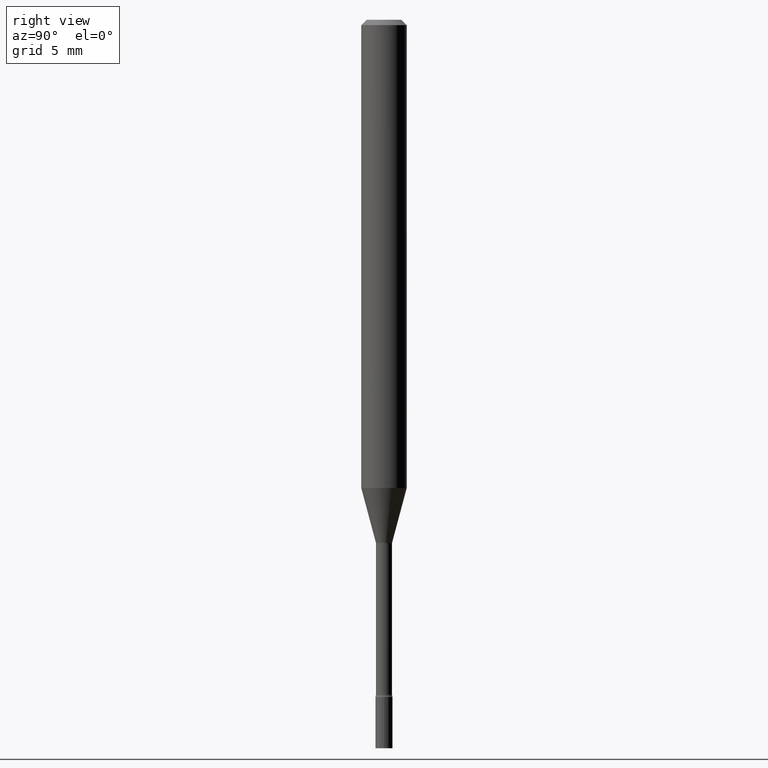
[diagram: clean part render]
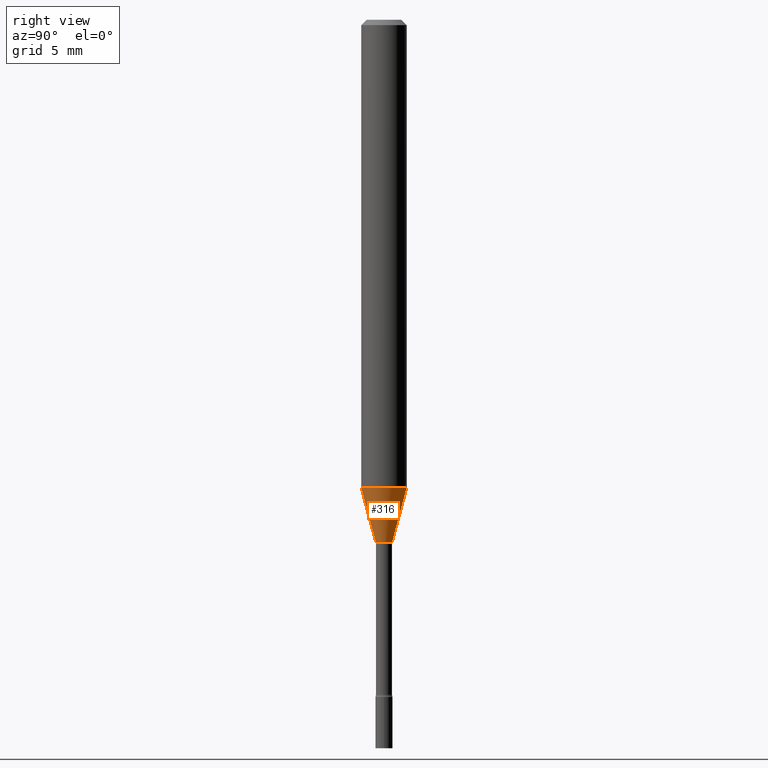
[diagram: same view with one face highlighted and labeled with its STEP entity id]
A machine part, right view. The second image highlights one B-rep face of the part: STEP entity #316.
In plain terms, the highlighted conical surface has half-angle 15 deg.
Its self-contained STEP definition (entity closure, byte-faithful):
#8 = CIRCLE ( 'NONE', #43, 0.02261111260566397996 ) ;
#43 = AXIS2_PLACEMENT_3D ( 'NONE', #281, #278, #445 ) ;
#51 = CARTESIAN_POINT ( 'NONE',  ( -4.364351673553603615E-16, -0.06250000000000451028, -1.285225147374217780 ) ) ;
#72 = CARTESIAN_POINT ( 'NONE',  ( -1.578925554262779717E-16, -0.02261111260566898637, -1.434092501787273211 ) ) ;
#77 = VECTOR ( 'NONE', #198, 39.37007874015749564 ) ;
#80 = DIRECTION ( 'NONE',  ( -6.982962677686265922E-15, -1.000000000000000000, 0.000000000000000000 ) ) ;
#87 = FACE_OUTER_BOUND ( 'NONE', #264, .T. ) ;
#108 = LINE ( 'NONE', #72, #77 ) ;
#120 = CARTESIAN_POINT ( 'NONE',  ( 1.606616180941167474E-16, 0.02261111260565897355, -1.434092501787273211 ) ) ;
#130 = ORIENTED_EDGE ( 'NONE', *, *, #254, .T. ) ;
#159 = CARTESIAN_POINT ( 'NONE',  ( 4.440892098500937762E-16, 0.06249999999999548278, -1.285225147374218224 ) ) ;
#175 = CIRCLE ( 'NONE', #357, 0.06250000000000000000 ) ;
#188 = DIRECTION ( 'NONE',  ( 1.839019923739599526E-15, 0.2588190451025248473, 0.9659258262890670910 ) ) ;
#194 = ORIENTED_EDGE ( 'NONE', *, *, #290, .F. ) ;
#198 = DIRECTION ( 'NONE',  ( -1.807323732225329350E-15, -0.2588190451025180194, 0.9659258262890689783 ) ) ;
#202 = CARTESIAN_POINT ( 'NONE',  ( 3.507042512048188960E-29, -5.007087111045831166E-15, -1.434092501787273211 ) ) ;
#227 = VECTOR ( 'NONE', #188, 39.37007874015748143 ) ;
#237 = AXIS2_PLACEMENT_3D ( 'NONE', #202, #313, #80 ) ;
#254 = EDGE_CURVE ( 'NONE', #491, #338, #8, .T. ) ;
#264 = EDGE_LOOP ( 'NONE', ( #130, #340, #505, #194 ) ) ;
#278 = DIRECTION ( 'NONE',  ( -2.445478591985838029E-29, 3.491467325019567696E-15, 1.000000000000000000 ) ) ;
#281 = CARTESIAN_POINT ( 'NONE',  ( 3.507042512048188960E-29, -5.007087111045831166E-15, -1.434092501787273211 ) ) ;
#290 = EDGE_CURVE ( 'NONE', #491, #386, #108, .T. ) ;
#311 = CARTESIAN_POINT ( 'NONE',  ( -1.578925554262779717E-16, -0.02261111260566898637, -1.434092501787273211 ) ) ;
#313 = DIRECTION ( 'NONE',  ( -2.445478591985838029E-29, 3.491467325019567696E-15, 1.000000000000000000 ) ) ;
#316 = ADVANCED_FACE ( 'NONE', ( #87 ), #475, .T. ) ;
#322 = EDGE_CURVE ( 'NONE', #338, #464, #334, .T. ) ;
#331 = EDGE_CURVE ( 'NONE', #386, #464, #175, .T. ) ;
#334 = LINE ( 'NONE', #120, #227 ) ;
#338 = VERTEX_POINT ( 'NONE', #469 ) ;
#340 = ORIENTED_EDGE ( 'NONE', *, *, #322, .T. ) ;
#348 = DIRECTION ( 'NONE',  ( -6.982962677686265922E-15, -1.000000000000000000, 4.370956789862821150E-15 ) ) ;
#357 = AXIS2_PLACEMENT_3D ( 'NONE', #388, #508, #348 ) ;
#386 = VERTEX_POINT ( 'NONE', #51 ) ;
#388 = CARTESIAN_POINT ( 'NONE',  ( 3.142990583785493865E-29, -4.487321607350540658E-15, -1.285225147374218002 ) ) ;
#445 = DIRECTION ( 'NONE',  ( -6.982962677686265922E-15, -1.000000000000000000, 0.000000000000000000 ) ) ;
#464 = VERTEX_POINT ( 'NONE', #159 ) ;
#469 = CARTESIAN_POINT ( 'NONE',  ( 3.023754139721054960E-16, 0.02261111260565897702, -1.434092501787273211 ) ) ;
#475 = CONICAL_SURFACE ( 'NONE', #237, 0.02261111260566397996, 0.2617993877991501850 ) ;
#491 = VERTEX_POINT ( 'NONE', #311 ) ;
#505 = ORIENTED_EDGE ( 'NONE', *, *, #331, .F. ) ;
#508 = DIRECTION ( 'NONE',  ( -2.445478591985838029E-29, 3.491467325019567696E-15, 1.000000000000000000 ) ) ;